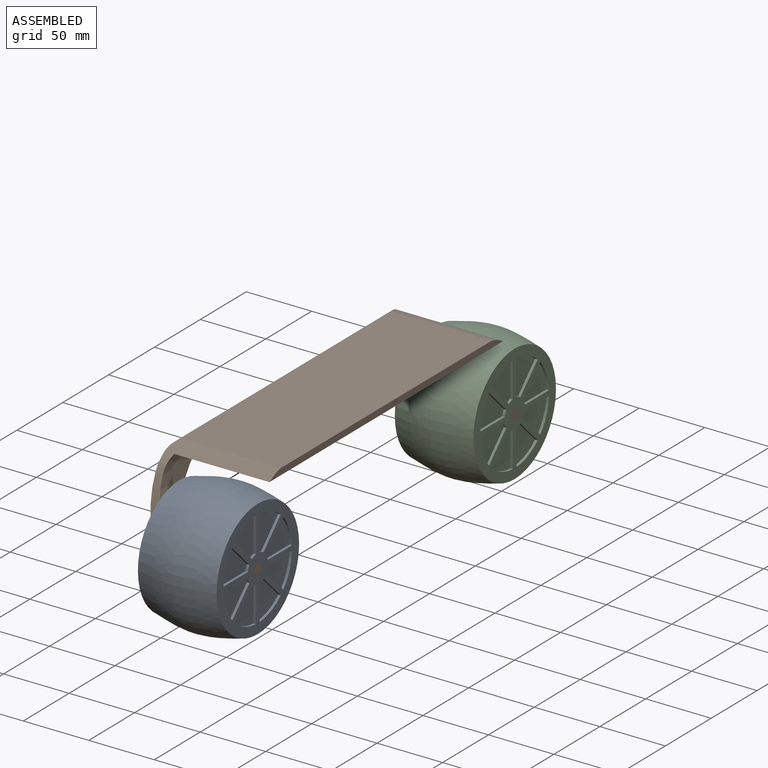
[diagram: assembled view]
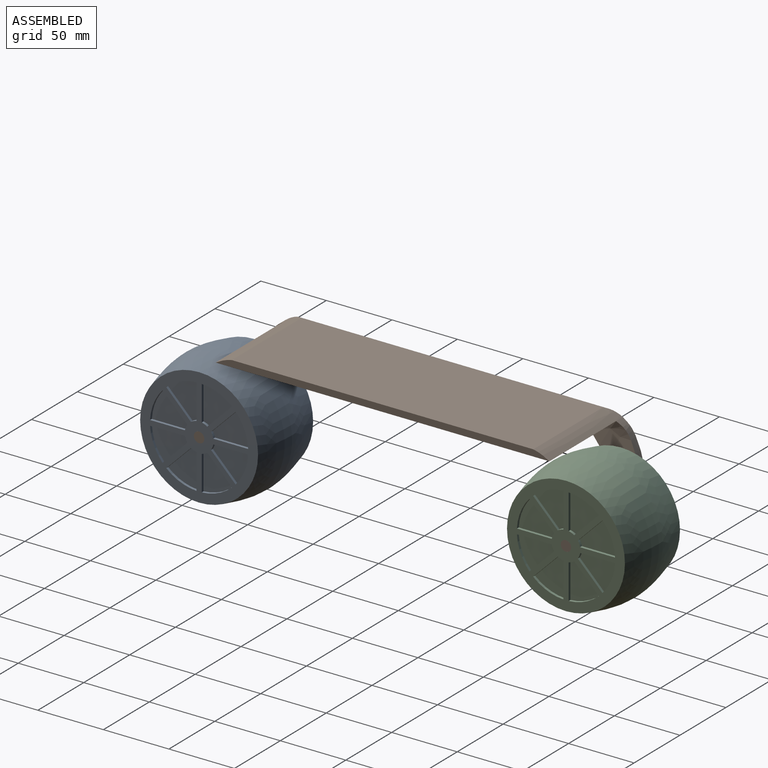
[diagram: assembled view, second angle]
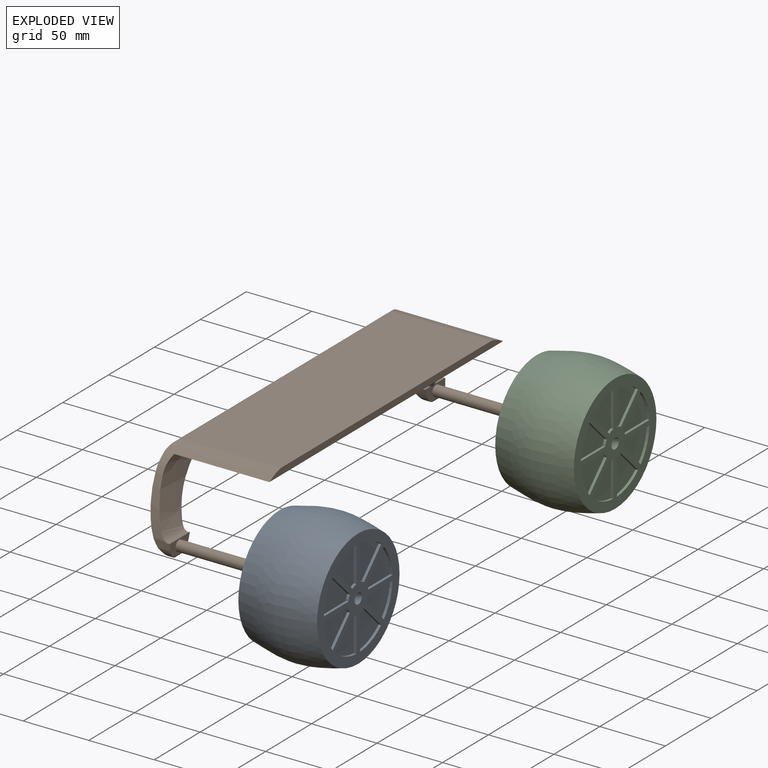
[diagram: exploded view]
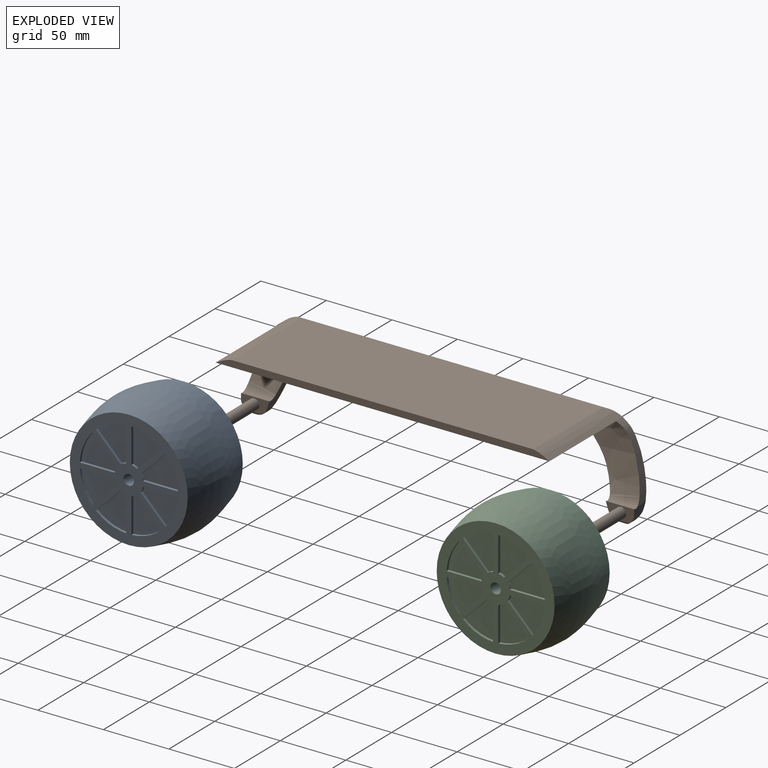
[diagram: exploded view, second angle]
ASSEMBLY  parts=3 mates=2
PART A: 85 faces, bbox 100x60x100 mm
  f0: cylinder r=4mm len=60mm, axis (0,1,0), area 1508mm2, adj f1,f44
  f1: plane 90x90mm, normal (0,-1,0), area 3123.1mm2, adj f0,f3,f4,f5,f6,f7,f9,f10
  f2: revolved ~100x100mm, area 9217.8mm2, adj f3,f44
  f3: revolved ~100x100mm, area 9217.8mm2, adj f1,f2
  f4: plane 26.63x2mm, normal (-1,0,0), area 53.3mm2, adj f1,f5,f7,f8
  f5: cylinder r=37.5mm len=23.06mm, axis (0,-1,0), area 50.9mm2, adj f1,f4,f6,f8
  f6: plane 18.83x18.83mm, normal (0.71,0,0.71), area 53.3mm2, adj f1,f5,f7,f8
  f7: cylinder r=11mm len=4.23mm, axis (0,-1,0), area 9.2mm2, adj f1,f4,f6,f8
  f8: plane 28.38x23.06mm, normal (0,-1,0), area 398.5mm2, adj f4,f5,f6,f7
  f9: plane 26.63x2mm, normal (0,0,1), area 53.3mm2, adj f1,f10,f12,f13
  f10: cylinder r=37.5mm len=23.06mm, axis (0,-1,0), area 50.9mm2, adj f1,f9,f11,f13
  f11: plane 18.83x18.83mm, normal (0.71,0,-0.71), area 53.3mm2, adj f1,f10,f12,f13
  f12: cylinder r=11mm len=4.23mm, axis (0,-1,0), area 9.2mm2, adj f1,f9,f11,f13
  f13: plane 28.38x23.06mm, normal (0,-1,0), area 398.5mm2, adj f9,f10,f11,f12
  f14: cylinder r=37.5mm len=23.06mm, axis (0,-1,0), area 50.9mm2, adj f1,f15,f17,f18
  f15: plane 26.63x2mm, normal (1,0,0), area 53.3mm2, adj f1,f14,f16,f18
  f16: cylinder r=11mm len=4.23mm, axis (0,-1,0), area 9.2mm2, adj f1,f15,f17,f18
  f17: plane 18.83x18.83mm, normal (-0.71,0,0.71), area 53.3mm2, adj f1,f14,f16,f18
  f18: plane 28.38x23.06mm, normal (0,-1,0), area 398.5mm2, adj f14,f15,f16,f17
  f19: plane 26.63x2mm, normal (1,0,0), area 53.3mm2, adj f1,f20,f22,f23
  f20: cylinder r=37.5mm len=23.06mm, axis (0,-1,0), area 50.9mm2, adj f1,f19,f21,f23
  f21: plane 18.83x18.83mm, normal (-0.71,0,-0.71), area 53.3mm2, adj f1,f20,f22,f23
  f22: cylinder r=11mm len=4.23mm, axis (0,-1,0), area 9.2mm2, adj f1,f19,f21,f23
  f23: plane 28.38x23.06mm, normal (0,-1,0), area 398.5mm2, adj f19,f20,f21,f22
  f24: cylinder r=37.5mm len=23.06mm, axis (0,-1,0), area 50.9mm2, adj f1,f25,f27,f28
  f25: plane 26.63x2mm, normal (0,0,-1), area 53.3mm2, adj f1,f24,f26,f28
  f26: cylinder r=11mm len=4.23mm, axis (0,-1,0), area 9.2mm2, adj f1,f25,f27,f28
  f27: plane 18.83x18.83mm, normal (0.71,0,0.71), area 53.3mm2, adj f1,f24,f26,f28
  f28: plane 28.38x23.06mm, normal (0,-1,0), area 398.5mm2, adj f24,f25,f26,f27
  f29: plane 26.63x2mm, normal (0,0,-1), area 53.3mm2, adj f1,f30,f32,f33
  f30: cylinder r=37.5mm len=23.06mm, axis (0,-1,0), area 50.9mm2, adj f1,f29,f31,f33
  f31: plane 18.83x18.83mm, normal (-0.71,0,0.71), area 53.3mm2, adj f1,f30,f32,f33
  f32: cylinder r=11mm len=4.23mm, axis (0,-1,0), area 9.2mm2, adj f1,f29,f31,f33
  f33: plane 28.38x23.06mm, normal (0,-1,0), area 398.5mm2, adj f29,f30,f31,f32
  f34: plane 18.83x18.83mm, normal (0.71,0,-0.71), area 53.3mm2, adj f1,f35,f37,f38
  f35: cylinder r=37.5mm len=23.06mm, axis (0,-1,0), area 50.9mm2, adj f1,f34,f36,f38
  f36: plane 26.63x2mm, normal (-1,0,0), area 53.3mm2, adj f1,f35,f37,f38
  f37: cylinder r=11mm len=4.23mm, axis (0,-1,0), area 9.2mm2, adj f1,f34,f36,f38
  f38: plane 28.38x23.06mm, normal (0,-1,0), area 398.5mm2, adj f34,f35,f36,f37
  f39: plane 18.83x18.83mm, normal (-0.71,0,-0.71), area 53.3mm2, adj f1,f40,f42,f43
  f40: cylinder r=37.5mm len=23.06mm, axis (0,-1,0), area 50.9mm2, adj f1,f39,f41,f43
  f41: plane 26.63x2mm, normal (0,0,1), area 53.3mm2, adj f1,f40,f42,f43
  f42: cylinder r=11mm len=4.23mm, axis (0,-1,0), area 9.2mm2, adj f1,f39,f41,f43
  f43: plane 28.38x23.06mm, normal (0,-1,0), area 398.5mm2, adj f39,f40,f41,f42
  f44: plane 90x90mm, normal (0,1,0), area 3123.1mm2, adj f0,f2,f45,f46,f47,f48,f50,f51
  f45: plane 26.63x2mm, normal (-1,0,0), area 53.3mm2, adj f44,f46,f48,f49
  f46: cylinder r=37.5mm len=23.06mm, axis (0,1,0), area 50.9mm2, adj f44,f45,f47,f49
  f47: plane 18.83x18.83mm, normal (0.71,0,0.71), area 53.3mm2, adj f44,f46,f48,f49
  f48: cylinder r=11mm len=4.23mm, axis (0,1,0), area 9.2mm2, adj f44,f45,f47,f49
  f49: plane 28.38x23.06mm, normal (0,1,0), area 398.5mm2, adj f45,f46,f47,f48
  f50: plane 26.63x2mm, normal (0,0,1), area 53.3mm2, adj f44,f51,f53,f54
  f51: cylinder r=37.5mm len=23.06mm, axis (0,1,0), area 50.9mm2, adj f44,f50,f52,f54
  f52: plane 18.83x18.83mm, normal (0.71,0,-0.71), area 53.3mm2, adj f44,f51,f53,f54
  f53: cylinder r=11mm len=4.23mm, axis (0,1,0), area 9.2mm2, adj f44,f50,f52,f54
  f54: plane 28.38x23.06mm, normal (0,1,0), area 398.5mm2, adj f50,f51,f52,f53
  f55: cylinder r=37.5mm len=23.06mm, axis (0,1,0), area 50.9mm2, adj f44,f56,f58,f59
  f56: plane 26.63x2mm, normal (1,0,0), area 53.3mm2, adj f44,f55,f57,f59
  f57: cylinder r=11mm len=4.23mm, axis (0,1,0), area 9.2mm2, adj f44,f56,f58,f59
  f58: plane 18.83x18.83mm, normal (-0.71,0,0.71), area 53.3mm2, adj f44,f55,f57,f59
  f59: plane 28.38x23.06mm, normal (0,1,0), area 398.5mm2, adj f55,f56,f57,f58
  f60: plane 26.63x2mm, normal (1,0,0), area 53.3mm2, adj f44,f61,f63,f64
  f61: cylinder r=37.5mm len=23.06mm, axis (0,1,0), area 50.9mm2, adj f44,f60,f62,f64
  f62: plane 18.83x18.83mm, normal (-0.71,0,-0.71), area 53.3mm2, adj f44,f61,f63,f64
  f63: cylinder r=11mm len=4.23mm, axis (0,1,0), area 9.2mm2, adj f44,f60,f62,f64
  f64: plane 28.38x23.06mm, normal (0,1,0), area 398.5mm2, adj f60,f61,f62,f63
  f65: cylinder r=37.5mm len=23.06mm, axis (0,1,0), area 50.9mm2, adj f44,f66,f68,f69
  f66: plane 26.63x2mm, normal (0,0,-1), area 53.3mm2, adj f44,f65,f67,f69
  f67: cylinder r=11mm len=4.23mm, axis (0,1,0), area 9.2mm2, adj f44,f66,f68,f69
  f68: plane 18.83x18.83mm, normal (0.71,0,0.71), area 53.3mm2, adj f44,f65,f67,f69
  f69: plane 28.38x23.06mm, normal (0,1,0), area 398.5mm2, adj f65,f66,f67,f68
  f70: plane 26.63x2mm, normal (0,0,-1), area 53.3mm2, adj f44,f71,f73,f74
  f71: cylinder r=37.5mm len=23.06mm, axis (0,1,0), area 50.9mm2, adj f44,f70,f72,f74
  f72: plane 18.83x18.83mm, normal (-0.71,0,0.71), area 53.3mm2, adj f44,f71,f73,f74
  f73: cylinder r=11mm len=4.23mm, axis (0,1,0), area 9.2mm2, adj f44,f70,f72,f74
  f74: plane 28.38x23.06mm, normal (0,1,0), area 398.5mm2, adj f70,f71,f72,f73
  f75: plane 18.83x18.83mm, normal (0.71,0,-0.71), area 53.3mm2, adj f44,f76,f78,f79
  f76: cylinder r=37.5mm len=23.06mm, axis (0,1,0), area 50.9mm2, adj f44,f75,f77,f79
  f77: plane 26.63x2mm, normal (-1,0,0), area 53.3mm2, adj f44,f76,f78,f79
  f78: cylinder r=11mm len=4.23mm, axis (0,1,0), area 9.2mm2, adj f44,f75,f77,f79
  f79: plane 28.38x23.06mm, normal (0,1,0), area 398.5mm2, adj f75,f76,f77,f78
  f80: plane 18.83x18.83mm, normal (-0.71,0,-0.71), area 53.3mm2, adj f44,f81,f83,f84
  f81: cylinder r=37.5mm len=23.06mm, axis (0,1,0), area 50.9mm2, adj f44,f80,f82,f84
  f82: plane 26.63x2mm, normal (0,0,1), area 53.3mm2, adj f44,f81,f83,f84
  f83: cylinder r=11mm len=4.23mm, axis (0,1,0), area 9.2mm2, adj f44,f80,f82,f84
  f84: plane 28.38x23.06mm, normal (0,1,0), area 398.5mm2, adj f80,f81,f82,f83
PART B: 27 faces, bbox 80x300.1x67.3 mm
  f0: plane 254.74x80.02mm, normal (0,0,-1), area 19810.6mm2, adj f3,f7,f8,f13,f16,f20,f21,f26
  f1: plane 230.16x75.02mm, normal (0,0,1), area 17268.1mm2, adj f2,f13,f16,f26
  f2: cylinder r=5mm len=254.68mm, axis (0,1,0), area 1887.5mm2, adj f1,f3,f13,f16
  f3: extruded ~300x61.79mm, area 3365.7mm2, adj f0,f2,f4,f9,f10,f11,f12,f13
  f4: cylinder r=2mm len=13.31mm, axis (0,1,0), area 28.6mm2, adj f3,f5,f17,f18
  f5: plane 21.73x10.42mm, normal (1,0,0), area 147.1mm2, adj f4,f7,f9,f17,f18,f20,f22
  f6: plane 21.65x10.42mm, normal (1,0,0), area 147.1mm2, adj f8,f10,f11,f12,f19,f21,f24
  f7: extruded ~61.72x50.25mm, area 1521.1mm2, adj f0,f5,f9,f15,f20
  f8: extruded ~61.72x50.25mm, area 1521.1mm2, adj f0,f6,f11,f14,f21
  f9: plane 12.59x5.48mm, normal (0,1,0), area 57.9mm2, adj f3,f5,f7,f15,f17
  f10: cylinder r=2mm len=13.31mm, axis (0,1,0), area 28.6mm2, adj f3,f6,f12,f19
  f11: plane 12.59x5.48mm, normal (0,-1,0), area 57.9mm2, adj f3,f6,f8,f12,f14
  f12: extruded ~9.39x8.66mm, area 62.3mm2, adj f3,f6,f10,f11
  f13: extruded ~80.02x12.29mm, area 1048.8mm2, adj f0,f1,f2,f3,f14,f26
  f14: extruded ~49.63x22.63mm, area 365.8mm2, adj f3,f8,f11,f13
  f15: extruded ~49.63x22.63mm, area 365.8mm2, adj f3,f7,f9,f16
  f16: extruded ~80.02x12.29mm, area 1048.8mm2, adj f0,f1,f2,f3,f15,f26
  f17: extruded ~9.39x8.66mm, area 62.3mm2, adj f3,f4,f5,f9
  f18: extruded ~10x9.39mm, area 71.1mm2, adj f3,f4,f5,f20
  f19: extruded ~10x9.39mm, area 71.1mm2, adj f3,f6,f10,f21
  f20: extruded ~55x41.72mm, area 489.2mm2, adj f0,f3,f5,f7,f18
  f21: extruded ~55x41.72mm, area 489.2mm2, adj f0,f3,f6,f8,f19
  f22: cylinder r=4mm len=60mm, axis (-1,0,0), area 1508mm2, adj f5,f23
  f23: plane 8x8mm, normal (1,0,0), area 50.3mm2, adj f22
  f24: cylinder r=4mm len=60mm, axis (-1,0,0), area 1508mm2, adj f6,f25
  f25: plane 8x8mm, normal (1,0,0), area 50.3mm2, adj f24
  f26: plane 254.74x5mm, normal (1,0,0), area 1222.7mm2, adj f0,f1,f13,f16
PART C: same geometry as A
PLACE A rot(axis=(0.58,0.58,-0.58),120deg) t=(60,-280,0)mm
PLACE B at identity
PLACE C rot(axis=(0.58,0.58,-0.58),120deg) t=(60,0,0)mm
MATE revolute A.f0 <-> B.f24  axis (-1,0,0) through (0,-280,0)mm
MATE revolute C.f40 <-> B.f22  axis (-1,0,0) through (0,0,0)mm
